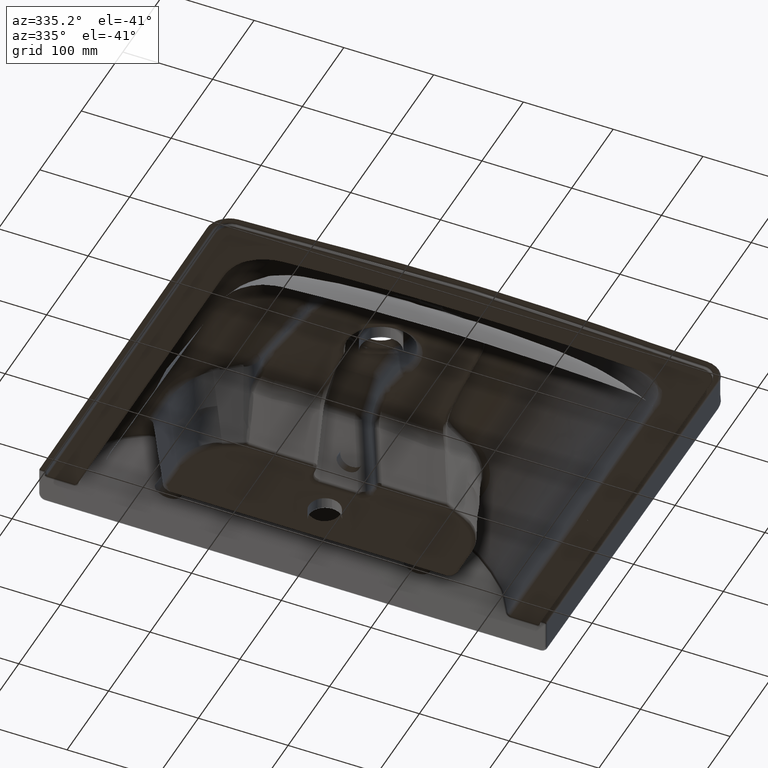
[diagram: clean part render]
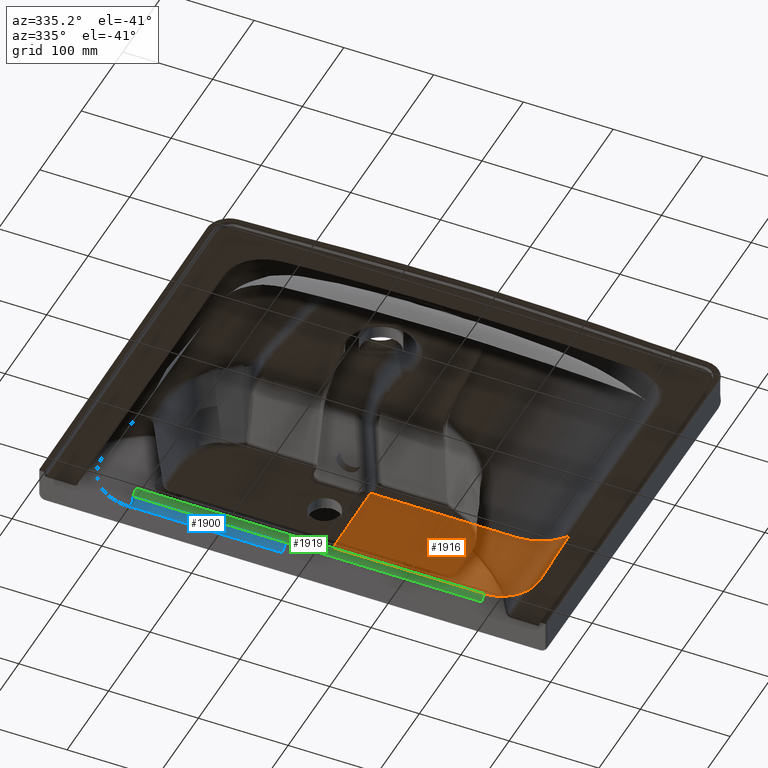
[diagram: same view with three faces highlighted in distinct colors, each labeled with its STEP entity id]
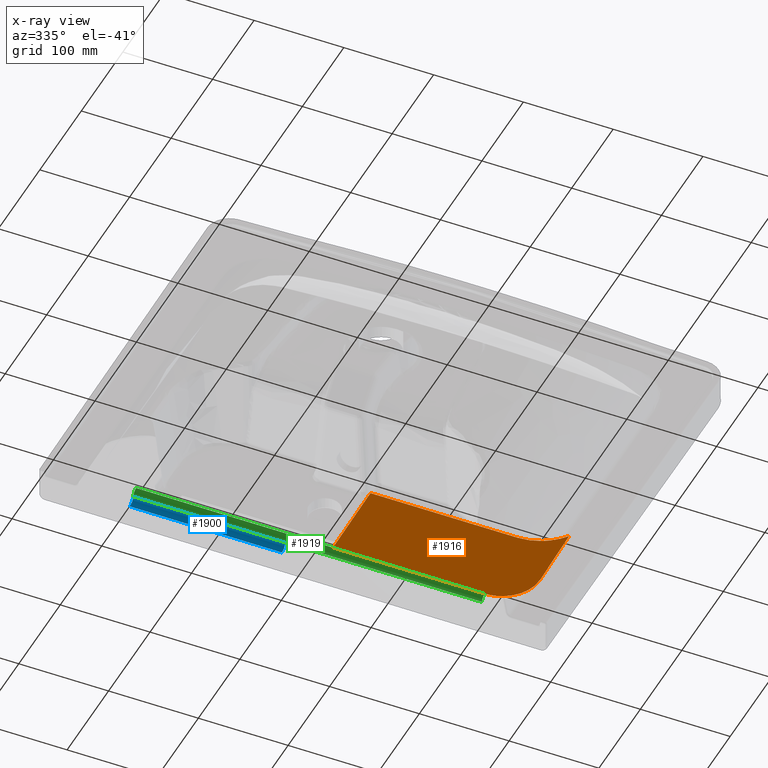
[diagram: x-ray of the same camera — body ghosted, the three highlighted faces saturated]
A machine part, auxiliary view with three faces highlighted in distinct colors.
The next image is the same camera in x-ray (body ghosted, the three faces saturated) — at least one of them is partly hidden behind the body in this view.
Their STEP definitions:

[orange] entity #1916 — the highlighted planar face has unit normal (-0, 0.0175, 0.9998).
#1106=LINE('',#34019,#1366);
#1115=LINE('',#34232,#1375);
#1116=LINE('',#34234,#1376);
#1366=VECTOR('',#10395,1.);
#1375=VECTOR('',#10418,1.);
#1376=VECTOR('',#10421,1.);
#1916=ADVANCED_FACE('',(#2545),#2044,.F.);
#2044=PLANE('',#9140);
#2545=FACE_OUTER_BOUND('',#3094,.T.);
#3094=EDGE_LOOP('',(#5544,#5545,#5546,#5547,#5548,#5549));
#5544=ORIENTED_EDGE('',*,*,#7797,.F.);
#5545=ORIENTED_EDGE('',*,*,#7820,.T.);
#5546=ORIENTED_EDGE('',*,*,#7821,.F.);
#5547=ORIENTED_EDGE('',*,*,#7822,.F.);
#5548=ORIENTED_EDGE('',*,*,#7800,.F.);
#5549=ORIENTED_EDGE('',*,*,#7799,.F.);
#6513=VERTEX_POINT('',#31793);
#6524=VERTEX_POINT('',#34005);
#6525=VERTEX_POINT('',#34020);
#6526=VERTEX_POINT('',#34073);
#6538=VERTEX_POINT('',#34231);
#6539=VERTEX_POINT('',#34235);
#7797=EDGE_CURVE('',#6524,#6525,#1106,.T.);
#7799=EDGE_CURVE('',#6525,#6513,#8574,.T.);
#7800=EDGE_CURVE('',#6513,#6526,#8575,.T.);
#7820=EDGE_CURVE('',#6524,#6538,#1115,.T.);
#7821=EDGE_CURVE('',#6539,#6538,#1116,.T.);
#7822=EDGE_CURVE('',#6526,#6539,#8585,.T.);
#8574=B_SPLINE_CURVE_WITH_KNOTS('',3,(#34028,#34029,#34030,#34031,#34032,
#34033,#34034,#34035),.UNSPECIFIED.,.F.,.F.,(4,2,2,4),(0.,0.5,0.75,1.),
 .UNSPECIFIED.);
#8575=B_SPLINE_CURVE_WITH_KNOTS('',3,(#34066,#34067,#34068,#34069,#34070,
#34071,#34072),.UNSPECIFIED.,.F.,.F.,(4,3,4),(0.,0.206294221600446,1.),
 .UNSPECIFIED.);
#8585=B_SPLINE_CURVE_WITH_KNOTS('',3,(#34236,#34237,#34238,#34239,#34240,
#34241,#34242,#34243,#34244,#34245,#34246,#34247,#34248,#34249),
 .UNSPECIFIED.,.F.,.F.,(4,2,2,2,2,2,4),(0.,0.25,0.5,0.625,0.75,0.875,1.),
 .UNSPECIFIED.);
#9140=AXIS2_PLACEMENT_3D('',#34250,#10422,#10423);
#10395=DIRECTION('',(-1.,0.,0.));
#10418=DIRECTION('',(0.,0.999847695156392,0.0174524064372835));
#10421=DIRECTION('',(1.,0.,0.));
#10422=DIRECTION('',(0.,0.0174524064372835,-0.999847695156392));
#10423=DIRECTION('',(0.,0.999847695156392,0.0174524064372835));
#31793=CARTESIAN_POINT('',(-235.282598681644,85.6986596679179,-17.1347778363045));
#34005=CARTESIAN_POINT('',(-25.0000000010118,109.328309038382,-16.7223207723121));
#34019=CARTESIAN_POINT('',(0.,109.328309038382,-16.7223207723121));
#34020=CARTESIAN_POINT('',(-188.795791431771,109.328309038383,-16.7223207723121));
#34028=CARTESIAN_POINT('',(-188.795791431771,109.328309038383,-16.7223207723121));
#34029=CARTESIAN_POINT('',(-197.88617615054,109.328309038451,-16.7223207723109));
#34030=CARTESIAN_POINT('',(-206.849731734497,107.062564152253,-16.7618694964105));
#34031=CARTESIAN_POINT('',(-218.824093961457,100.939114059866,-16.8687547153578));
#34032=CARTESIAN_POINT('',(-222.640576939896,98.3976246463325,-16.9131165780855));
#34033=CARTESIAN_POINT('',(-229.492443057115,92.6043351899845,-17.014238821694));
#34034=CARTESIAN_POINT('',(-232.570098825748,89.3427898537404,-17.0711693073041));
#34035=CARTESIAN_POINT('',(-235.282598681644,85.6986596679179,-17.1347778363045));
#34066=CARTESIAN_POINT('',(-235.282598681644,85.6986596679179,-17.1347778363045));
#34067=CARTESIAN_POINT('',(-235.367736524794,90.6228357369343,-17.0488260233019));
#34068=CARTESIAN_POINT('',(-235.45091742631,95.5470460139614,-16.9628736131962));
#34069=CARTESIAN_POINT('',(-235.532155477903,100.471287944691,-16.876920650573));
#34070=CARTESIAN_POINT('',(-235.844714173241,119.417023387779,-16.5462216083011));
#34071=CARTESIAN_POINT('',(-236.128531026011,138.363253665496,-16.2155139286586));
#34072=CARTESIAN_POINT('',(-236.384263684752,157.309841099345,-15.8848000148326));
#34073=CARTESIAN_POINT('',(-236.384263684752,157.309841099345,-15.8848000148326));
#34231=CARTESIAN_POINT('',(-25.0000000010118,199.931196535034,-15.140841488374));
#34232=CARTESIAN_POINT('',(-25.0000000010118,208.,-15.));
#34234=CARTESIAN_POINT('',(-25.0000000010118,199.931196535034,-15.140841488374));
#34235=CARTESIAN_POINT('',(-194.168321296335,199.931196535034,-15.140841488374));
#34236=CARTESIAN_POINT('',(-236.384263684752,157.309841099345,-15.8848000148326));
#34237=CARTESIAN_POINT('',(-236.460128950296,162.930507203929,-15.7866909230373));
#34238=CARTESIAN_POINT('',(-235.429033072494,168.53574877518,-15.6888510674727));
#34239=CARTESIAN_POINT('',(-231.320624314295,178.836444935389,-15.5090517471904));
#34240=CARTESIAN_POINT('',(-228.194733075289,183.616555694754,-15.4256146035217));
#34241=CARTESIAN_POINT('',(-222.326043986209,189.525967072602,-15.3224654442338));
#34242=CARTESIAN_POINT('',(-220.134828013052,191.325398926317,-15.2910562443933));
#34243=CARTESIAN_POINT('',(-215.506794892457,194.401900295659,-15.2373557132397));
#34244=CARTESIAN_POINT('',(-213.058570954881,195.698101071506,-15.2147304445372));
#34245=CARTESIAN_POINT('',(-207.894555922563,197.807931491043,-15.1779032175767));
#34246=CARTESIAN_POINT('',(-205.188089963494,198.609929209071,-15.1639042953362));
#34247=CARTESIAN_POINT('',(-199.744300719546,199.665200628076,-15.1454844642006));
#34248=CARTESIAN_POINT('',(-196.978585895535,199.931196535034,-15.140841488374));
#34249=CARTESIAN_POINT('',(-194.168321296335,199.931196535034,-15.140841488374));
#34250=CARTESIAN_POINT('',(0.,208.,-15.));

[blue] entity #1900 — the highlighted cylindrical surface (edge-blend (fillet) strip) has radius 8 mm, axis along (1, 0, 0).
#279=CYLINDRICAL_SURFACE('',#9127,8.);
#776=CIRCLE('',#9117,8.);
#781=CIRCLE('',#9125,8.);
#1099=LINE('',#29180,#1359);
#1104=LINE('',#33889,#1364);
#1359=VECTOR('',#10356,1.);
#1364=VECTOR('',#10383,1.);
#1900=ADVANCED_FACE('',(#2530),#279,.T.);
#2530=FACE_OUTER_BOUND('',#3077,.T.);
#3077=EDGE_LOOP('',(#5470,#5471,#5472,#5473));
#5470=ORIENTED_EDGE('',*,*,#7753,.F.);
#5471=ORIENTED_EDGE('',*,*,#7751,.T.);
#5472=ORIENTED_EDGE('',*,*,#7785,.F.);
#5473=ORIENTED_EDGE('',*,*,#7786,.T.);
#6499=VERTEX_POINT('',#29177);
#6500=VERTEX_POINT('',#29181);
#6501=VERTEX_POINT('',#29198);
#6519=VERTEX_POINT('',#33886);
#7751=EDGE_CURVE('',#6500,#6499,#1099,.T.);
#7753=EDGE_CURVE('',#6500,#6501,#776,.T.);
#7785=EDGE_CURVE('',#6519,#6499,#781,.T.);
#7786=EDGE_CURVE('',#6519,#6501,#1104,.T.);
#9117=AXIS2_PLACEMENT_3D('',#29197,#10359,#10360);
#9125=AXIS2_PLACEMENT_3D('',#33887,#10379,#10380);
#9127=AXIS2_PLACEMENT_3D('',#33890,#10384,#10385);
#10356=DIRECTION('',(-1.,0.,0.));
#10359=DIRECTION('',(1.,0.,0.));
#10360=DIRECTION('',(0.,0.,-1.));
#10379=DIRECTION('',(-1.,0.,0.));
#10380=DIRECTION('',(0.,0.,-1.));
#10383=DIRECTION('',(1.,0.,0.));
#10384=DIRECTION('',(-1.,0.,0.));
#10385=DIRECTION('',(0.,0.,-1.));
#29177=CARTESIAN_POINT('',(25.0000000010118,214.712797049418,-2.));
#29180=CARTESIAN_POINT('',(0.,214.712797049418,-2.));
#29181=CARTESIAN_POINT('',(194.329542397738,214.712797049418,-1.99999999999996));
#29197=CARTESIAN_POINT('',(194.329542397738,214.712797049418,-9.99999999999988));
#29198=CARTESIAN_POINT('',(194.329542397738,206.834335025321,-8.61081457866448));
#33886=CARTESIAN_POINT('',(25.0000000010118,206.834335025321,-8.61081457866457));
#33887=CARTESIAN_POINT('',(25.0000000010118,214.712797049418,-10.));
#33889=CARTESIAN_POINT('',(0.,206.834335025321,-8.61081457866456));
#33890=CARTESIAN_POINT('',(0.,214.712797049418,-10.));

[green] entity #1919 — the highlighted cylindrical surface (edge-blend (fillet) strip) has radius 7 mm, axis along (-1, -0, 0).
#283=CYLINDRICAL_SURFACE('',#9143,7.);
#786=CIRCLE('',#9137,7.);
#787=CIRCLE('',#9141,7.);
#1109=LINE('',#34122,#1369);
#1111=LINE('',#34126,#1371);
#1112=LINE('',#34192,#1372);
#1114=LINE('',#34230,#1374);
#1116=LINE('',#34234,#1376);
#1117=LINE('',#34300,#1377);
#1369=VECTOR('',#10404,1.);
#1371=VECTOR('',#10408,1.);
#1372=VECTOR('',#10413,1.);
#1374=VECTOR('',#10417,1.);
#1376=VECTOR('',#10421,1.);
#1377=VECTOR('',#10426,1.);
#1919=ADVANCED_FACE('',(#2548),#283,.F.);
#2548=FACE_OUTER_BOUND('',#3097,.T.);
#3097=EDGE_LOOP('',(#5558,#5559,#5560,#5561,#5562,#5563,#5564,#5565));
#5558=ORIENTED_EDGE('',*,*,#7806,.T.);
#5559=ORIENTED_EDGE('',*,*,#7824,.T.);
#5560=ORIENTED_EDGE('',*,*,#7823,.T.);
#5561=ORIENTED_EDGE('',*,*,#7821,.T.);
#5562=ORIENTED_EDGE('',*,*,#7819,.T.);
#5563=ORIENTED_EDGE('',*,*,#7811,.F.);
#5564=ORIENTED_EDGE('',*,*,#7809,.F.);
#5565=ORIENTED_EDGE('',*,*,#7808,.F.);
#6520=VERTEX_POINT('',#33895);
#6527=VERTEX_POINT('',#34091);
#6528=VERTEX_POINT('',#34121);
#6529=VERTEX_POINT('',#34123);
#6530=VERTEX_POINT('',#34129);
#6531=VERTEX_POINT('',#34193);
#6538=VERTEX_POINT('',#34231);
#6539=VERTEX_POINT('',#34235);
#7806=EDGE_CURVE('',#6529,#6528,#1109,.T.);
#7808=EDGE_CURVE('',#6529,#6520,#1111,.T.);
#7809=EDGE_CURVE('',#6520,#6530,#786,.T.);
#7811=EDGE_CURVE('',#6530,#6531,#1112,.T.);
#7819=EDGE_CURVE('',#6538,#6531,#1114,.T.);
#7821=EDGE_CURVE('',#6539,#6538,#1116,.T.);
#7823=EDGE_CURVE('',#6527,#6539,#787,.T.);
#7824=EDGE_CURVE('',#6528,#6527,#1117,.T.);
#9137=AXIS2_PLACEMENT_3D('',#34128,#10411,#10412);
#9141=AXIS2_PLACEMENT_3D('',#34251,#10424,#10425);
#9143=AXIS2_PLACEMENT_3D('',#34302,#10429,#10430);
#10404=DIRECTION('',(-1.,0.,0.));
#10408=DIRECTION('',(1.,0.,0.));
#10411=DIRECTION('',(-1.,0.,0.));
#10412=DIRECTION('',(0.,0.,1.));
#10413=DIRECTION('',(-1.,0.,0.));
#10417=DIRECTION('',(1.,0.,0.));
#10421=DIRECTION('',(1.,0.,0.));
#10424=DIRECTION('',(-1.,0.,0.));
#10425=DIRECTION('',(0.,0.,1.));
#10426=DIRECTION('',(-1.,0.,0.));
#10429=DIRECTION('',(1.,0.,0.));
#10430=DIRECTION('',(0.,0.,-1.));
#33895=CARTESIAN_POINT('',(194.168321296335,206.702683961059,-9.35744486594779));
#34091=CARTESIAN_POINT('',(-194.168321296335,206.702683961059,-9.35744486594779));
#34121=CARTESIAN_POINT('',(-25.0000000010118,206.702683961059,-9.35744486594779));
#34122=CARTESIAN_POINT('',(-25.0000000010118,206.702683961059,-9.35744486594779));
#34123=CARTESIAN_POINT('',(25.0000000010118,206.702683961059,-9.35744486594779));
#34126=CARTESIAN_POINT('',(192.911314376803,206.702683961059,-9.35744486594779));
#34128=CARTESIAN_POINT('',(194.168321296335,199.809029689973,-8.14190762227927));
#34129=CARTESIAN_POINT('',(194.168321296335,199.931196535034,-15.140841488374));
#34192=CARTESIAN_POINT('',(25.0000000010118,199.931196535034,-15.140841488374));
#34193=CARTESIAN_POINT('',(25.0000000010118,199.931196535034,-15.140841488374));
#34230=CARTESIAN_POINT('',(0.,199.931196535034,-15.140841488374));
#34231=CARTESIAN_POINT('',(-25.0000000010118,199.931196535034,-15.140841488374));
#34234=CARTESIAN_POINT('',(-25.0000000010118,199.931196535034,-15.140841488374));
#34235=CARTESIAN_POINT('',(-194.168321296335,199.931196535034,-15.140841488374));
#34251=CARTESIAN_POINT('',(-194.168321296335,199.809029689973,-8.14190762227927));
#34300=CARTESIAN_POINT('',(-192.911314376803,206.702683961059,-9.35744486594779));
#34302=CARTESIAN_POINT('',(0.,199.809029689973,-8.14190762227928));